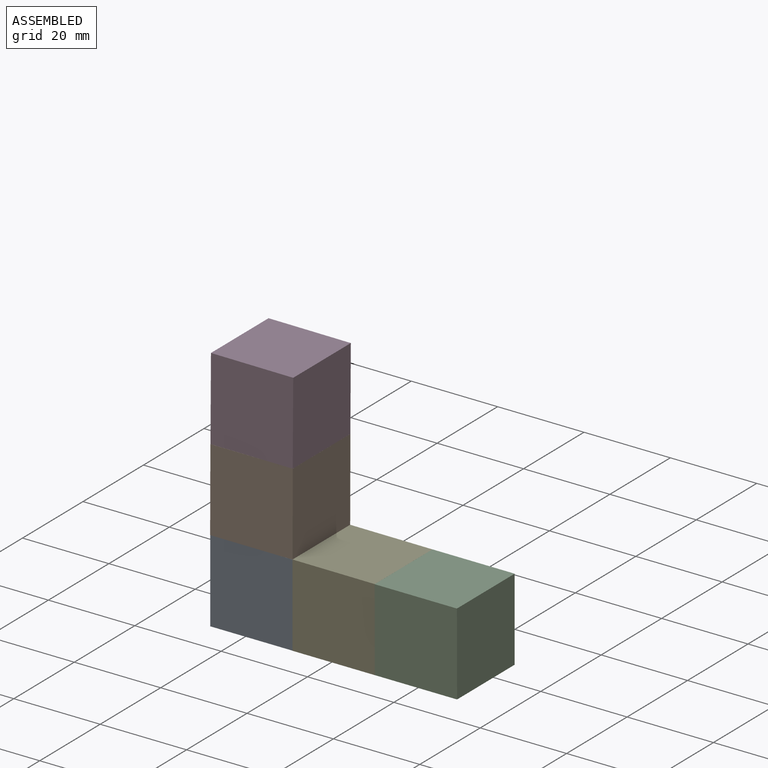
[diagram: assembled view]
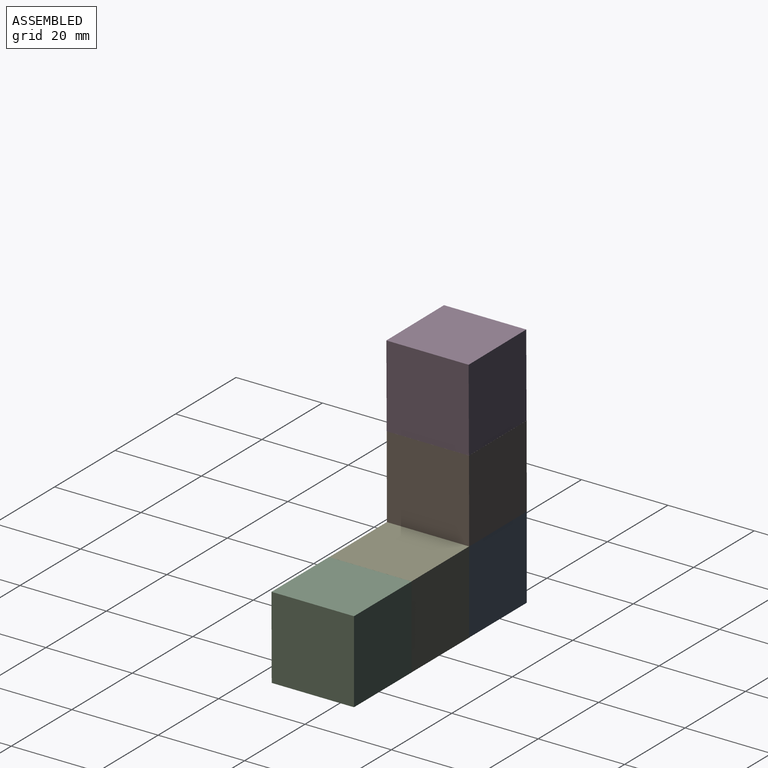
[diagram: assembled view, second angle]
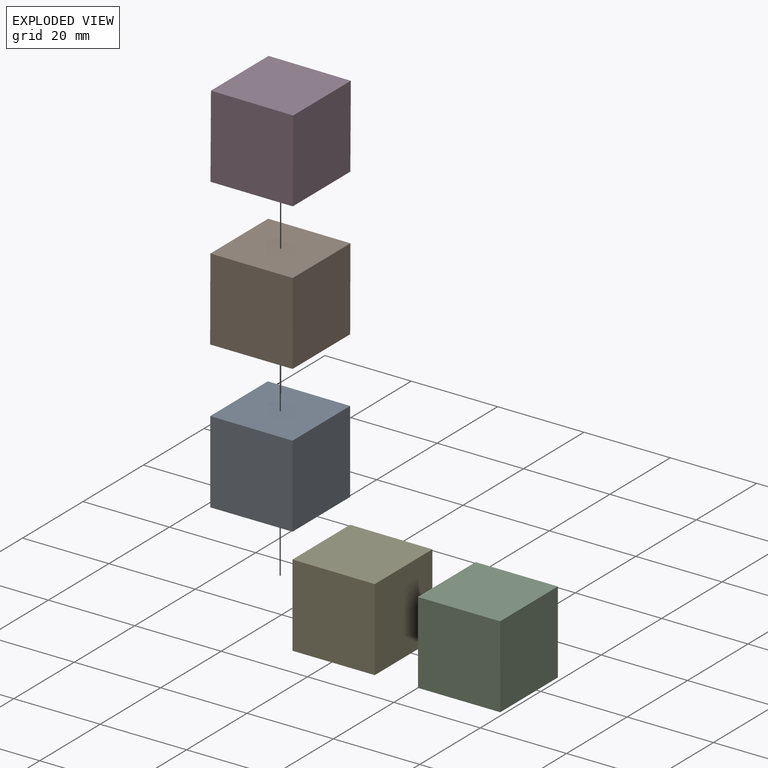
[diagram: exploded view]
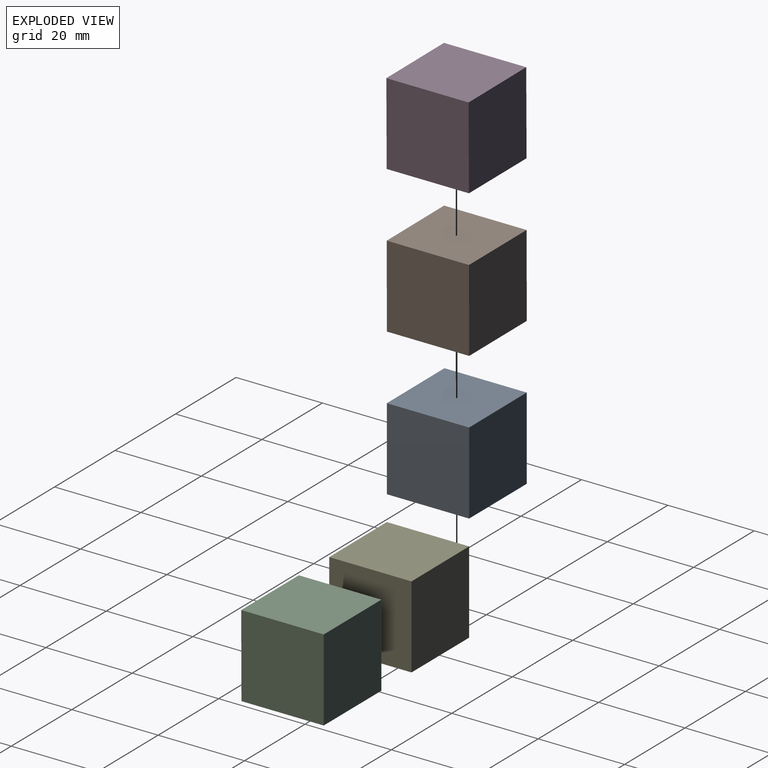
[diagram: exploded view, second angle]
ASSEMBLY  parts=5 mates=4
PART A: 6 faces, bbox 19.1x19.1x19.1 mm
  f0: plane 19.05x19.05mm, normal (0,0,1), area 362.9mm2, adj f1,f3,f4,f5
  f1: plane 19.1x19.05mm, normal (-1,0,0), area 363.9mm2, adj f0,f2,f4,f5
  f2: plane 19.05x19.05mm, normal (0,0,-1), area 362.9mm2, adj f1,f3,f4,f5
  f3: plane 19.05x19.05mm, normal (1,0,0), area 362.9mm2, adj f0,f2,f4,f5
  f4: plane 19.1x19.05mm, normal (0,-1,0), area 363.4mm2, adj f0,f1,f2,f3
  f5: plane 19.1x19.05mm, normal (0,1,0), area 363.4mm2, adj f0,f1,f2,f3
PART B: same geometry as A
PART C: same geometry as A
PART D: same geometry as A
PART E: same geometry as A
PLACE A t=(-57.35,-35.23,-3.17)mm fixed
PLACE B rot(axis=(1,0,0),90deg) t=(-57.29,-44.54,25.63)mm
PLACE C rot(axis=(0.58,0.58,-0.58),120deg) t=(-9.37,-44.54,-2.65)mm
PLACE D rot(axis=(1,0,0),180deg) t=(-57.24,-54.28,35.39)mm
PLACE E t=(-38.3,-35.23,-3.2)mm
MATE fastened B.f5 <-> D.f0  axis (0,0,1) through (-56.94,-44.75,25.63)mm
MATE fastened E.f3 <-> C.f4  axis (1,0,0) through (-28.42,-44.75,-3)mm
MATE fastened A.f3 <-> E.f1  axis (1,0,0) through (-47.47,-44.75,-2.97)mm
MATE fastened A.f0 <-> B.f4  axis (0,0,1) through (-57,-44.75,6.58)mm
